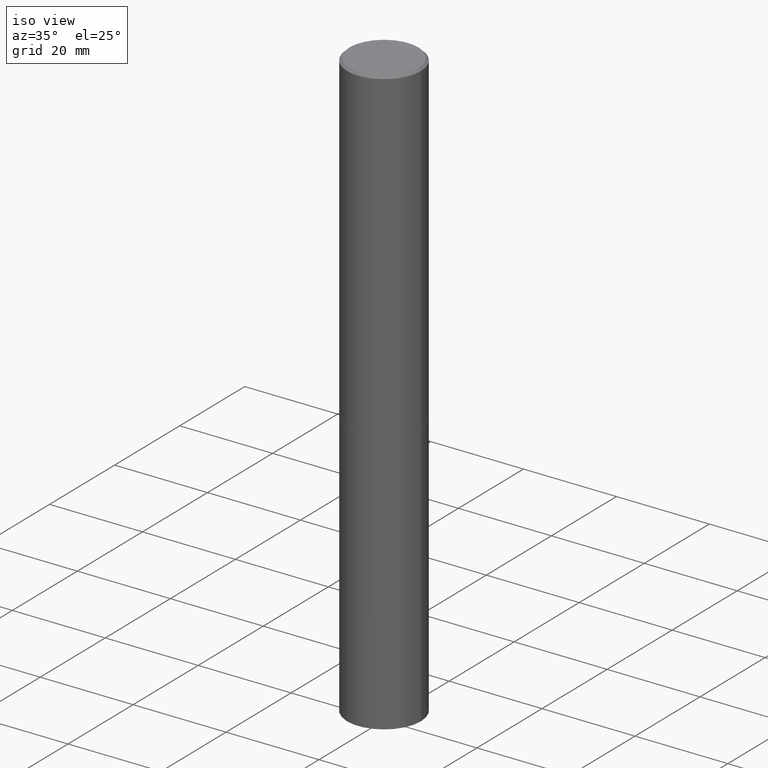
[diagram: clean part render]
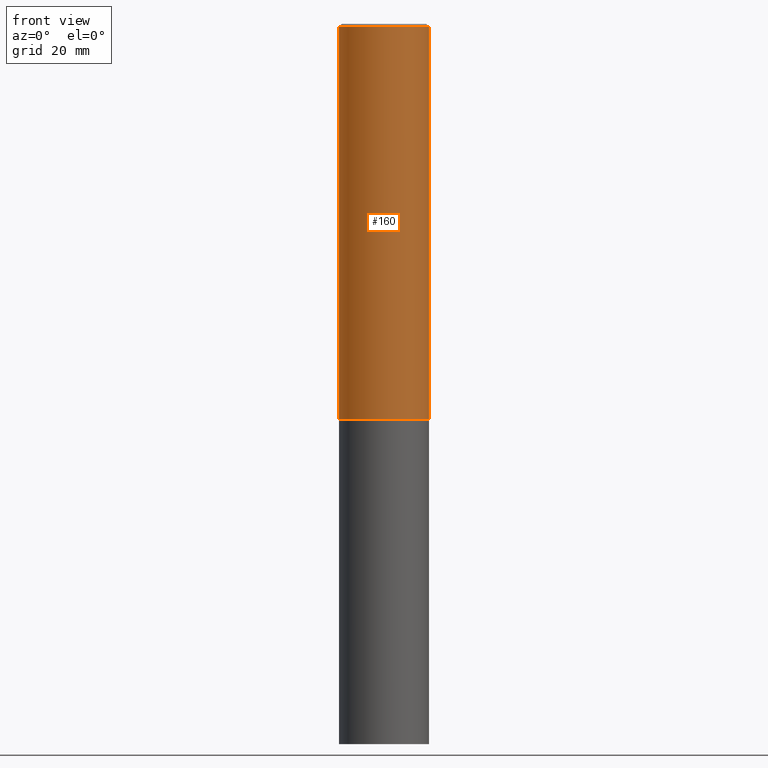
[diagram: tour spotlight — one face highlighted and labeled with its STEP entity id]
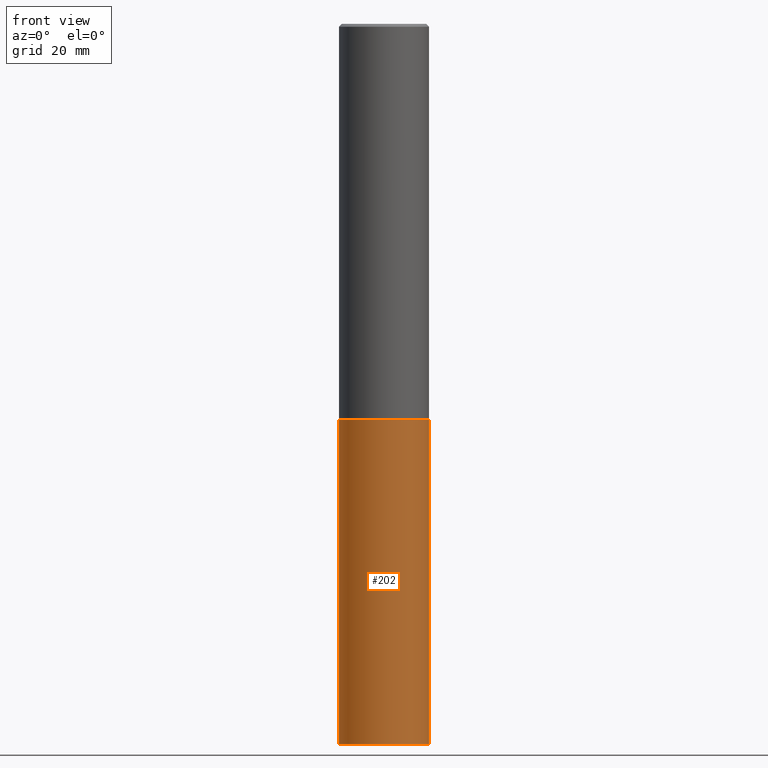
[diagram: tour spotlight — one face highlighted and labeled with its STEP entity id]
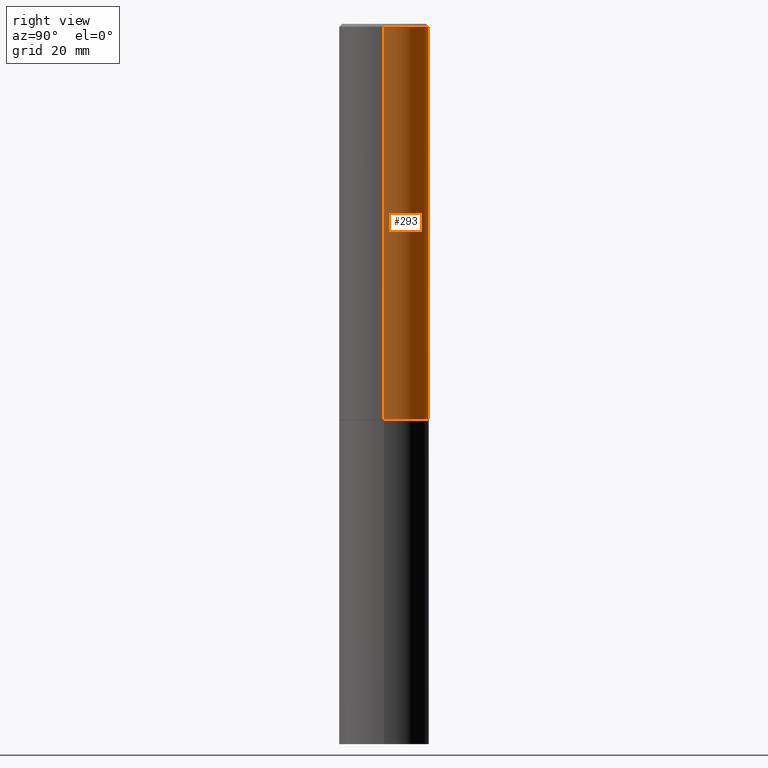
[diagram: tour spotlight — one face highlighted and labeled with its STEP entity id]
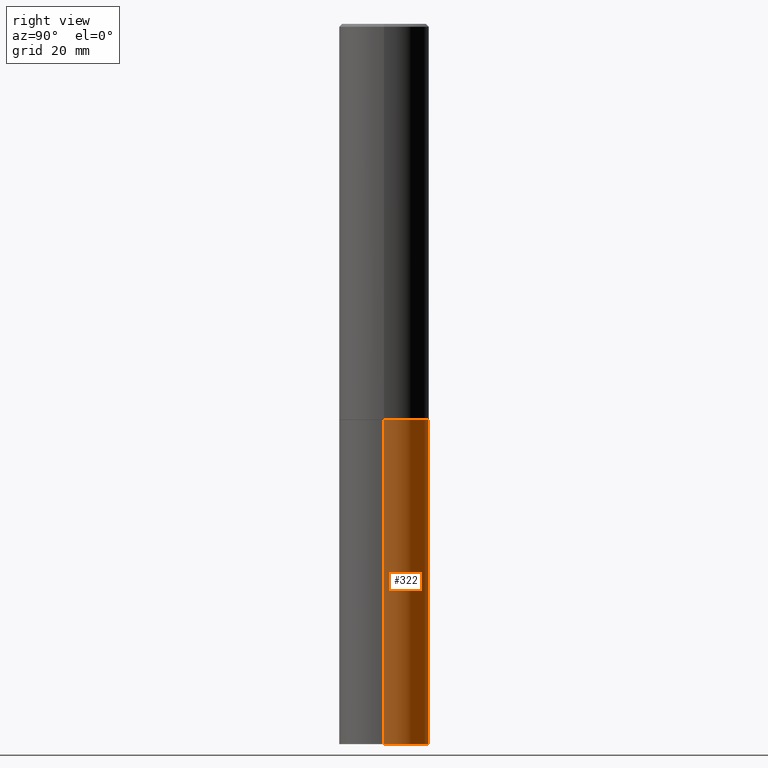
[diagram: tour spotlight — one face highlighted and labeled with its STEP entity id]
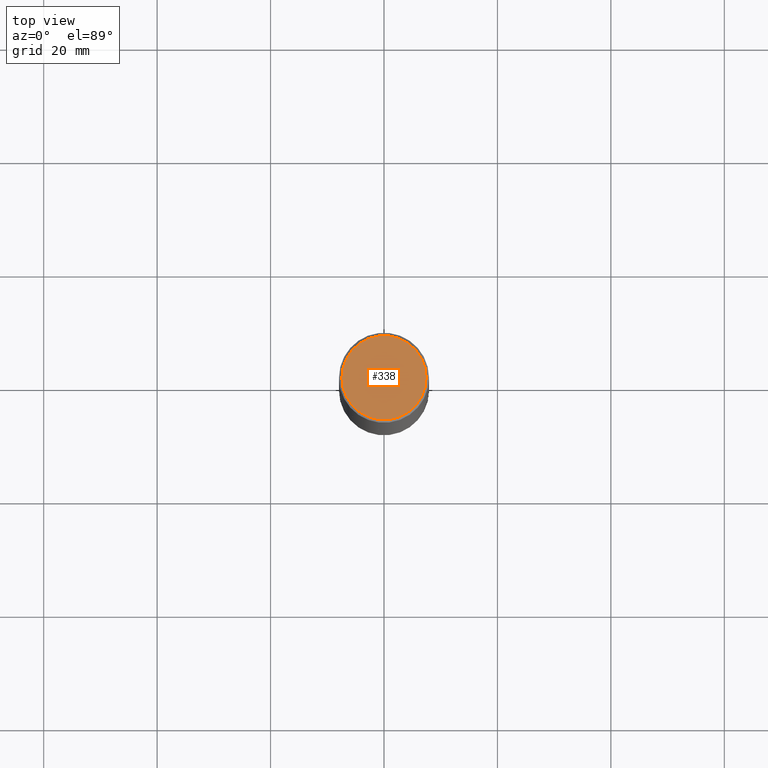
[diagram: tour spotlight — one face highlighted and labeled with its STEP entity id]
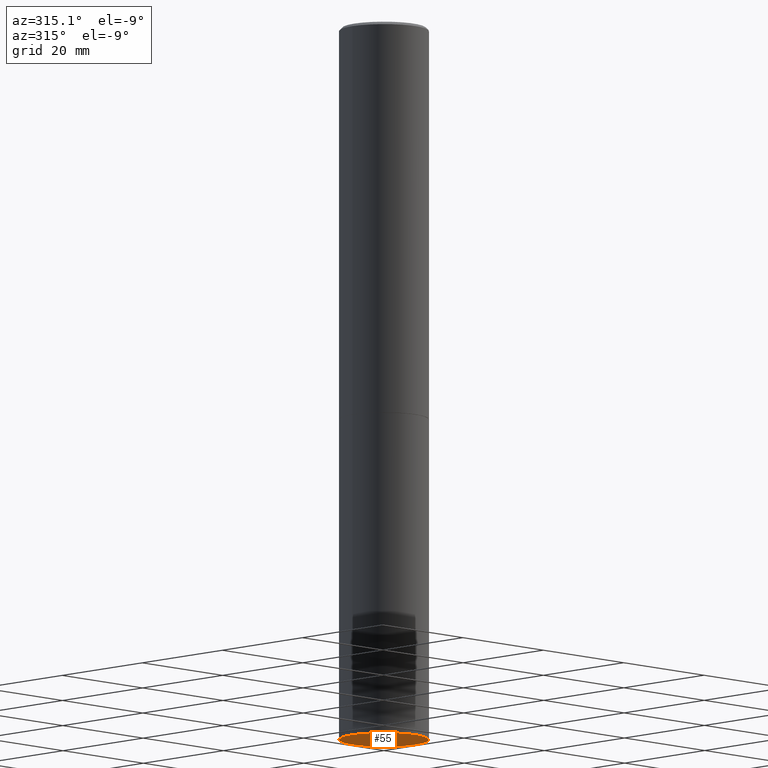
[diagram: tour spotlight — one face highlighted and labeled with its STEP entity id]
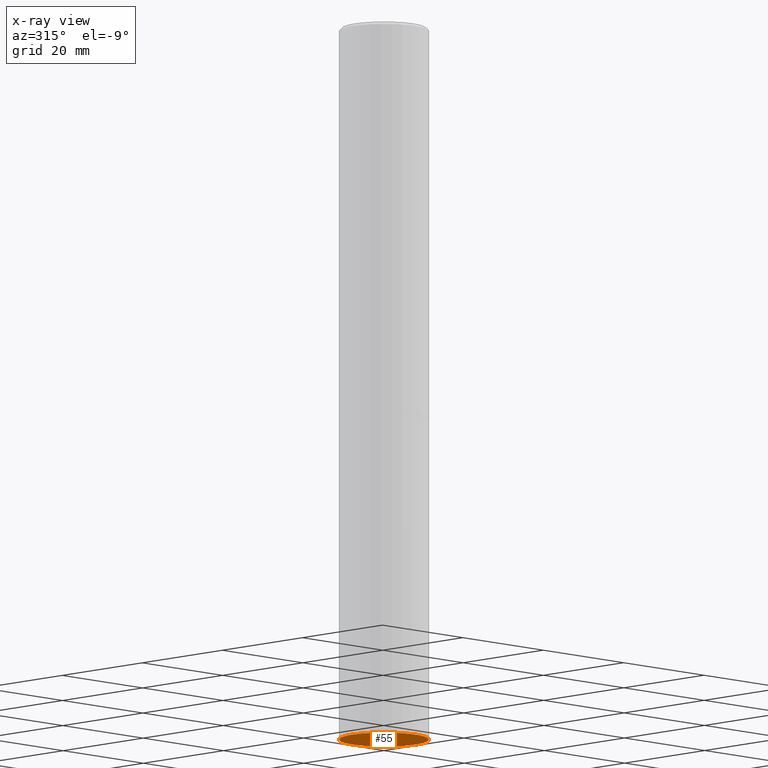
[diagram: x-ray of the same camera — body ghosted, this tour face saturated]
A machine part: a face-by-face anatomy tour. The part has 12 B-rep faces; the first image is the clean iso view, then the 6 largest visible faces are spotlighted one at a time (largest first), each with its STEP entity span.

Face 1 — front view, entity #160. In plain terms, the highlighted cylindrical surface (partial cylindrical patch) has radius 7.9375 mm, axis along (-0, 0, 1).
Definition (entity closure, byte-faithful):
#4 = ORIENTED_EDGE ( 'NONE', *, *, #316, .F. ) ;
#10 = EDGE_CURVE ( 'NONE', #297, #33, #130, .T. ) ;
#21 = AXIS2_PLACEMENT_3D ( 'NONE', #269, #180, #266 ) ;
#24 = VECTOR ( 'NONE', #278, 39.37007874015748143 ) ;
#33 = VERTEX_POINT ( 'NONE', #216 ) ;
#44 = CARTESIAN_POINT ( 'NONE',  ( -0.3125000000000000000, -2.613509864378019233E-15, -2.749000000000000110 ) ) ;
#70 = DIRECTION ( 'NONE',  ( 1.000000000000000000, -6.982962677686269077E-15, 0.000000000000000000 ) ) ;
#91 = EDGE_CURVE ( 'NONE', #201, #297, #324, .T. ) ;
#119 = DIRECTION ( 'NONE',  ( -2.445468806185136877E-29, 3.491481338843145188E-15, 1.000000000000000000 ) ) ;
#130 = LINE ( 'NONE', #337, #24 ) ;
#131 = ORIENTED_EDGE ( 'NONE', *, *, #10, .T. ) ;
#132 = CARTESIAN_POINT ( 'NONE',  ( 0.000000000000000000, 0.000000000000000000, 0.000000000000000000 ) ) ;
#134 = VECTOR ( 'NONE', #119, 39.37007874015748143 ) ;
#141 = ORIENTED_EDGE ( 'NONE', *, *, #248, .F. ) ;
#160 = ADVANCED_FACE ( 'NONE', ( #188 ), #249, .T. ) ;
#164 = AXIS2_PLACEMENT_3D ( 'NONE', #309, #222, #70 ) ;
#174 = VERTEX_POINT ( 'NONE', #252 ) ;
#180 = DIRECTION ( 'NONE',  ( -2.445468806185136597E-29, 3.491481338843145583E-15, 1.000000000000000000 ) ) ;
#188 = FACE_OUTER_BOUND ( 'NONE', #313, .T. ) ;
#201 = VERTEX_POINT ( 'NONE', #44 ) ;
#210 = LINE ( 'NONE', #272, #134 ) ;
#216 = CARTESIAN_POINT ( 'NONE',  ( 0.3124999999999996114, -2.213735251080464150E-15, -0.02000000000000006981 ) ) ;
#222 = DIRECTION ( 'NONE',  ( -2.445468806185136597E-29, 3.491481338843145583E-15, 1.000000000000000000 ) ) ;
#248 = EDGE_CURVE ( 'NONE', #201, #174, #210, .T. ) ;
#249 = CYLINDRICAL_SURFACE ( 'NONE', #306, 0.3124999999999998335 ) ;
#252 = CARTESIAN_POINT ( 'NONE',  ( -0.3124999999999996114, 2.112346210000092288E-15, -0.02000000000000006981 ) ) ;
#266 = DIRECTION ( 'NONE',  ( 1.000000000000000000, -6.982962677686266711E-15, 0.000000000000000000 ) ) ;
#268 = CIRCLE ( 'NONE', #21, 0.3124999999999996114 ) ;
#269 = CARTESIAN_POINT ( 'NONE',  ( 4.890937612370289799E-31, -6.982962677686315028E-17, -0.02000000000000006981 ) ) ;
#272 = CARTESIAN_POINT ( 'NONE',  ( -0.3124999999999998335, 2.220446049250311898E-15, -1.537167215704657111E-29 ) ) ;
#277 = DIRECTION ( 'NONE',  ( -2.445468806185136597E-29, 3.491481338843145583E-15, 1.000000000000000000 ) ) ;
#278 = DIRECTION ( 'NONE',  ( -2.445468806185136877E-29, 3.491481338843145188E-15, 1.000000000000000000 ) ) ;
#289 = ORIENTED_EDGE ( 'NONE', *, *, #91, .T. ) ;
#291 = CARTESIAN_POINT ( 'NONE',  ( 0.3125000000000000000, -1.178025803725676678E-14, -2.749000000000000110 ) ) ;
#297 = VERTEX_POINT ( 'NONE', #291 ) ;
#306 = AXIS2_PLACEMENT_3D ( 'NONE', #132, #277, #360 ) ;
#309 = CARTESIAN_POINT ( 'NONE',  ( 6.722593748202941159E-29, -9.598082200479808430E-15, -2.749000000000000110 ) ) ;
#313 = EDGE_LOOP ( 'NONE', ( #141, #289, #131, #4 ) ) ;
#316 = EDGE_CURVE ( 'NONE', #174, #33, #268, .T. ) ;
#324 = CIRCLE ( 'NONE', #164, 0.3125000000000000000 ) ;
#337 = CARTESIAN_POINT ( 'NONE',  ( 0.3124999999999998335, -2.182175836776956769E-15, 1.523805242436228954E-29 ) ) ;
#360 = DIRECTION ( 'NONE',  ( 1.000000000000000000, -6.982962677686265133E-15, 4.876176775795935232E-29 ) ) ;

Face 2 — front view, entity #202. In plain terms, the highlighted cylindrical surface (partial cylindrical patch) has radius 7.9375 mm, axis along (-0, 0, 1).
Definition (entity closure, byte-faithful):
#1 = VERTEX_POINT ( 'NONE', #300 ) ;
#5 = VECTOR ( 'NONE', #177, 39.37007874015748143 ) ;
#6 = CARTESIAN_POINT ( 'NONE',  ( -0.3125000000000000000, -1.130904413876687600E-14, -2.750000000000000000 ) ) ;
#17 = DIRECTION ( 'NONE',  ( 1.000000000000000000, -6.982962677686269077E-15, 0.000000000000000000 ) ) ;
#34 = DIRECTION ( 'NONE',  ( -2.445468806185136597E-29, 3.491481338843145583E-15, 1.000000000000000000 ) ) ;
#77 = ORIENTED_EDGE ( 'NONE', *, *, #110, .F. ) ;
#80 = AXIS2_PLACEMENT_3D ( 'NONE', #246, #104, #303 ) ;
#82 = VERTEX_POINT ( 'NONE', #6 ) ;
#104 = DIRECTION ( 'NONE',  ( -2.445468806185136597E-29, 3.491481338843145583E-15, 1.000000000000000000 ) ) ;
#107 = CIRCLE ( 'NONE', #137, 0.3125000000000000000 ) ;
#110 = EDGE_CURVE ( 'NONE', #82, #317, #120, .T. ) ;
#116 = ORIENTED_EDGE ( 'NONE', *, *, #241, .T. ) ;
#117 = CARTESIAN_POINT ( 'NONE',  ( 1.222734403092568523E-28, -1.745740669421572989E-14, -5.000000000000000000 ) ) ;
#120 = CIRCLE ( 'NONE', #80, 0.3125000000000000000 ) ;
#122 = CARTESIAN_POINT ( 'NONE',  ( 0.3125000000000000000, -2.182175836776958347E-15, 1.523805242436230075E-29 ) ) ;
#137 = AXIS2_PLACEMENT_3D ( 'NONE', #117, #34, #17 ) ;
#147 = LINE ( 'NONE', #212, #282 ) ;
#162 = FACE_OUTER_BOUND ( 'NONE', #163, .T. ) ;
#163 = EDGE_LOOP ( 'NONE', ( #194, #343, #116, #77 ) ) ;
#177 = DIRECTION ( 'NONE',  ( -2.445468806185136877E-29, 3.491481338843145188E-15, 1.000000000000000000 ) ) ;
#194 = ORIENTED_EDGE ( 'NONE', *, *, #288, .F. ) ;
#202 = ADVANCED_FACE ( 'NONE', ( #162 ), #244, .T. ) ;
#212 = CARTESIAN_POINT ( 'NONE',  ( -0.3125000000000000000, 2.220446049250313081E-15, -1.537167215704658232E-29 ) ) ;
#218 = DIRECTION ( 'NONE',  ( 1.000000000000000000, -6.982962677686266711E-15, 4.876176775795936353E-29 ) ) ;
#237 = DIRECTION ( 'NONE',  ( -2.445468806185136877E-29, 3.491481338843145188E-15, 1.000000000000000000 ) ) ;
#241 = EDGE_CURVE ( 'NONE', #1, #317, #299, .T. ) ;
#244 = CYLINDRICAL_SURFACE ( 'NONE', #274, 0.3125000000000000000 ) ;
#246 = CARTESIAN_POINT ( 'NONE',  ( 6.725039217009124520E-29, -9.601573681818649859E-15, -2.750000000000000000 ) ) ;
#257 = VERTEX_POINT ( 'NONE', #290 ) ;
#271 = EDGE_CURVE ( 'NONE', #257, #1, #107, .T. ) ;
#274 = AXIS2_PLACEMENT_3D ( 'NONE', #356, #330, #218 ) ;
#282 = VECTOR ( 'NONE', #237, 39.37007874015748143 ) ;
#288 = EDGE_CURVE ( 'NONE', #257, #82, #147, .T. ) ;
#290 = CARTESIAN_POINT ( 'NONE',  ( -0.3125000000000000000, -1.130904413876687600E-14, -5.000000000000000000 ) ) ;
#295 = CARTESIAN_POINT ( 'NONE',  ( 0.3125000000000000000, -1.178374951859560978E-14, -2.750000000000000000 ) ) ;
#299 = LINE ( 'NONE', #122, #5 ) ;
#300 = CARTESIAN_POINT ( 'NONE',  ( 0.3125000000000000000, -1.963958253099268981E-14, -5.000000000000000000 ) ) ;
#303 = DIRECTION ( 'NONE',  ( 1.000000000000000000, -6.982962677686269077E-15, 0.000000000000000000 ) ) ;
#317 = VERTEX_POINT ( 'NONE', #295 ) ;
#330 = DIRECTION ( 'NONE',  ( -2.445468806185136597E-29, 3.491481338843145583E-15, 1.000000000000000000 ) ) ;
#343 = ORIENTED_EDGE ( 'NONE', *, *, #271, .T. ) ;
#356 = CARTESIAN_POINT ( 'NONE',  ( 0.000000000000000000, 0.000000000000000000, 0.000000000000000000 ) ) ;

Face 3 — right view, entity #293. In plain terms, the highlighted cylindrical surface (partial cylindrical patch) has radius 7.9375 mm, axis along (-0, 0, 1).
Definition (entity closure, byte-faithful):
#10 = EDGE_CURVE ( 'NONE', #297, #33, #130, .T. ) ;
#22 = CARTESIAN_POINT ( 'NONE',  ( 6.722593748202941159E-29, -9.598082200479808430E-15, -2.749000000000000110 ) ) ;
#24 = VECTOR ( 'NONE', #278, 39.37007874015748143 ) ;
#28 = AXIS2_PLACEMENT_3D ( 'NONE', #22, #361, #105 ) ;
#31 = EDGE_CURVE ( 'NONE', #297, #201, #311, .T. ) ;
#33 = VERTEX_POINT ( 'NONE', #216 ) ;
#35 = DIRECTION ( 'NONE',  ( 1.000000000000000000, -6.982962677686265133E-15, 4.876176775795935232E-29 ) ) ;
#41 = EDGE_CURVE ( 'NONE', #33, #174, #206, .T. ) ;
#44 = CARTESIAN_POINT ( 'NONE',  ( -0.3125000000000000000, -2.613509864378019233E-15, -2.749000000000000110 ) ) ;
#50 = AXIS2_PLACEMENT_3D ( 'NONE', #57, #232, #35 ) ;
#51 = ORIENTED_EDGE ( 'NONE', *, *, #31, .T. ) ;
#57 = CARTESIAN_POINT ( 'NONE',  ( 0.000000000000000000, 0.000000000000000000, 0.000000000000000000 ) ) ;
#61 = AXIS2_PLACEMENT_3D ( 'NONE', #283, #166, #69 ) ;
#69 = DIRECTION ( 'NONE',  ( 1.000000000000000000, -6.982962677686266711E-15, 0.000000000000000000 ) ) ;
#105 = DIRECTION ( 'NONE',  ( 1.000000000000000000, -6.982962677686269077E-15, 0.000000000000000000 ) ) ;
#119 = DIRECTION ( 'NONE',  ( -2.445468806185136877E-29, 3.491481338843145188E-15, 1.000000000000000000 ) ) ;
#130 = LINE ( 'NONE', #337, #24 ) ;
#134 = VECTOR ( 'NONE', #119, 39.37007874015748143 ) ;
#139 = EDGE_LOOP ( 'NONE', ( #51, #228, #231, #168 ) ) ;
#166 = DIRECTION ( 'NONE',  ( -2.445468806185136597E-29, 3.491481338843145583E-15, 1.000000000000000000 ) ) ;
#168 = ORIENTED_EDGE ( 'NONE', *, *, #10, .F. ) ;
#174 = VERTEX_POINT ( 'NONE', #252 ) ;
#201 = VERTEX_POINT ( 'NONE', #44 ) ;
#206 = CIRCLE ( 'NONE', #61, 0.3124999999999996114 ) ;
#210 = LINE ( 'NONE', #272, #134 ) ;
#216 = CARTESIAN_POINT ( 'NONE',  ( 0.3124999999999996114, -2.213735251080464150E-15, -0.02000000000000006981 ) ) ;
#228 = ORIENTED_EDGE ( 'NONE', *, *, #248, .T. ) ;
#231 = ORIENTED_EDGE ( 'NONE', *, *, #41, .F. ) ;
#232 = DIRECTION ( 'NONE',  ( -2.445468806185136597E-29, 3.491481338843145583E-15, 1.000000000000000000 ) ) ;
#248 = EDGE_CURVE ( 'NONE', #201, #174, #210, .T. ) ;
#252 = CARTESIAN_POINT ( 'NONE',  ( -0.3124999999999996114, 2.112346210000092288E-15, -0.02000000000000006981 ) ) ;
#272 = CARTESIAN_POINT ( 'NONE',  ( -0.3124999999999998335, 2.220446049250311898E-15, -1.537167215704657111E-29 ) ) ;
#278 = DIRECTION ( 'NONE',  ( -2.445468806185136877E-29, 3.491481338843145188E-15, 1.000000000000000000 ) ) ;
#283 = CARTESIAN_POINT ( 'NONE',  ( 4.890937612370289799E-31, -6.982962677686315028E-17, -0.02000000000000006981 ) ) ;
#291 = CARTESIAN_POINT ( 'NONE',  ( 0.3125000000000000000, -1.178025803725676678E-14, -2.749000000000000110 ) ) ;
#293 = ADVANCED_FACE ( 'NONE', ( #352 ), #298, .T. ) ;
#297 = VERTEX_POINT ( 'NONE', #291 ) ;
#298 = CYLINDRICAL_SURFACE ( 'NONE', #50, 0.3124999999999998335 ) ;
#311 = CIRCLE ( 'NONE', #28, 0.3125000000000000000 ) ;
#337 = CARTESIAN_POINT ( 'NONE',  ( 0.3124999999999998335, -2.182175836776956769E-15, 1.523805242436228954E-29 ) ) ;
#352 = FACE_OUTER_BOUND ( 'NONE', #139, .T. ) ;
#361 = DIRECTION ( 'NONE',  ( -2.445468806185136597E-29, 3.491481338843145583E-15, 1.000000000000000000 ) ) ;

Face 4 — right view, entity #322. In plain terms, the highlighted cylindrical surface (partial cylindrical patch) has radius 7.9375 mm, axis along (-0, 0, 1).
Definition (entity closure, byte-faithful):
#1 = VERTEX_POINT ( 'NONE', #300 ) ;
#5 = VECTOR ( 'NONE', #177, 39.37007874015748143 ) ;
#6 = CARTESIAN_POINT ( 'NONE',  ( -0.3125000000000000000, -1.130904413876687600E-14, -2.750000000000000000 ) ) ;
#11 = CARTESIAN_POINT ( 'NONE',  ( 0.000000000000000000, 0.000000000000000000, 0.000000000000000000 ) ) ;
#19 = DIRECTION ( 'NONE',  ( -2.445468806185136597E-29, 3.491481338843145583E-15, 1.000000000000000000 ) ) ;
#40 = DIRECTION ( 'NONE',  ( -2.445468806185136597E-29, 3.491481338843145583E-15, 1.000000000000000000 ) ) ;
#47 = EDGE_CURVE ( 'NONE', #1, #257, #362, .T. ) ;
#64 = CYLINDRICAL_SURFACE ( 'NONE', #294, 0.3125000000000000000 ) ;
#68 = DIRECTION ( 'NONE',  ( 1.000000000000000000, -6.982962677686269077E-15, 0.000000000000000000 ) ) ;
#75 = CIRCLE ( 'NONE', #198, 0.3125000000000000000 ) ;
#79 = ORIENTED_EDGE ( 'NONE', *, *, #183, .F. ) ;
#82 = VERTEX_POINT ( 'NONE', #6 ) ;
#122 = CARTESIAN_POINT ( 'NONE',  ( 0.3125000000000000000, -2.182175836776958347E-15, 1.523805242436230075E-29 ) ) ;
#147 = LINE ( 'NONE', #212, #282 ) ;
#150 = FACE_OUTER_BOUND ( 'NONE', #171, .T. ) ;
#171 = EDGE_LOOP ( 'NONE', ( #226, #315, #79, #258 ) ) ;
#177 = DIRECTION ( 'NONE',  ( -2.445468806185136877E-29, 3.491481338843145188E-15, 1.000000000000000000 ) ) ;
#182 = DIRECTION ( 'NONE',  ( 1.000000000000000000, -6.982962677686266711E-15, 4.876176775795936353E-29 ) ) ;
#183 = EDGE_CURVE ( 'NONE', #317, #82, #75, .T. ) ;
#198 = AXIS2_PLACEMENT_3D ( 'NONE', #358, #19, #68 ) ;
#212 = CARTESIAN_POINT ( 'NONE',  ( -0.3125000000000000000, 2.220446049250313081E-15, -1.537167215704658232E-29 ) ) ;
#226 = ORIENTED_EDGE ( 'NONE', *, *, #47, .T. ) ;
#237 = DIRECTION ( 'NONE',  ( -2.445468806185136877E-29, 3.491481338843145188E-15, 1.000000000000000000 ) ) ;
#241 = EDGE_CURVE ( 'NONE', #1, #317, #299, .T. ) ;
#247 = CARTESIAN_POINT ( 'NONE',  ( 1.222734403092568523E-28, -1.745740669421572989E-14, -5.000000000000000000 ) ) ;
#250 = DIRECTION ( 'NONE',  ( 1.000000000000000000, -6.982962677686269077E-15, 0.000000000000000000 ) ) ;
#257 = VERTEX_POINT ( 'NONE', #290 ) ;
#258 = ORIENTED_EDGE ( 'NONE', *, *, #241, .F. ) ;
#282 = VECTOR ( 'NONE', #237, 39.37007874015748143 ) ;
#288 = EDGE_CURVE ( 'NONE', #257, #82, #147, .T. ) ;
#290 = CARTESIAN_POINT ( 'NONE',  ( -0.3125000000000000000, -1.130904413876687600E-14, -5.000000000000000000 ) ) ;
#294 = AXIS2_PLACEMENT_3D ( 'NONE', #11, #40, #182 ) ;
#295 = CARTESIAN_POINT ( 'NONE',  ( 0.3125000000000000000, -1.178374951859560978E-14, -2.750000000000000000 ) ) ;
#299 = LINE ( 'NONE', #122, #5 ) ;
#300 = CARTESIAN_POINT ( 'NONE',  ( 0.3125000000000000000, -1.963958253099268981E-14, -5.000000000000000000 ) ) ;
#315 = ORIENTED_EDGE ( 'NONE', *, *, #288, .T. ) ;
#317 = VERTEX_POINT ( 'NONE', #295 ) ;
#318 = AXIS2_PLACEMENT_3D ( 'NONE', #247, #359, #250 ) ;
#322 = ADVANCED_FACE ( 'NONE', ( #150 ), #64, .T. ) ;
#358 = CARTESIAN_POINT ( 'NONE',  ( 6.725039217009124520E-29, -9.601573681818649859E-15, -2.750000000000000000 ) ) ;
#359 = DIRECTION ( 'NONE',  ( -2.445468806185136597E-29, 3.491481338843145583E-15, 1.000000000000000000 ) ) ;
#362 = CIRCLE ( 'NONE', #318, 0.3125000000000000000 ) ;

Face 5 — top view, entity #338. In plain terms, the highlighted planar face has unit normal (0, -0, -1).
Definition (entity closure, byte-faithful):
#7 = AXIS2_PLACEMENT_3D ( 'NONE', #14, #66, #185 ) ;
#14 = CARTESIAN_POINT ( 'NONE',  ( -1.043851414335219820E-46, 1.490343170380447200E-32, 4.268512490100411279E-18 ) ) ;
#20 = AXIS2_PLACEMENT_3D ( 'NONE', #336, #191, #157 ) ;
#37 = CARTESIAN_POINT ( 'NONE',  ( 2.042516583223229779E-15, 0.2924999999999995937, -1.019124035366568423E-15 ) ) ;
#60 = CARTESIAN_POINT ( 'NONE',  ( -0.2924999999999995937, 2.077431396611661033E-15, 4.268512490086005323E-18 ) ) ;
#66 = DIRECTION ( 'NONE',  ( -2.445468806185136597E-29, 3.491481338843145583E-15, 1.000000000000000000 ) ) ;
#111 = VERTEX_POINT ( 'NONE', #158 ) ;
#124 = FACE_OUTER_BOUND ( 'NONE', #205, .T. ) ;
#153 = PLANE ( 'NONE',  #275 ) ;
#157 = DIRECTION ( 'NONE',  ( 1.000000000000000000, -6.982962677686266711E-15, 4.876067333457696203E-29 ) ) ;
#158 = CARTESIAN_POINT ( 'NONE',  ( 0.2924999999999995937, -2.110215457714316776E-15, 4.268512490114932791E-18 ) ) ;
#175 = CIRCLE ( 'NONE', #20, 0.2924999999999995937 ) ;
#185 = DIRECTION ( 'NONE',  ( 1.000000000000000000, -6.982962677686266711E-15, 4.876067333457696203E-29 ) ) ;
#191 = DIRECTION ( 'NONE',  ( -2.445468806185136597E-29, 3.491481338843145583E-15, 1.000000000000000000 ) ) ;
#193 = EDGE_CURVE ( 'NONE', #111, #287, #175, .T. ) ;
#205 = EDGE_LOOP ( 'NONE', ( #348, #264 ) ) ;
#240 = DIRECTION ( 'NONE',  ( -1.000000000000000000, 6.982962677686265922E-15, -4.876176775795935793E-29 ) ) ;
#264 = ORIENTED_EDGE ( 'NONE', *, *, #193, .T. ) ;
#275 = AXIS2_PLACEMENT_3D ( 'NONE', #37, #328, #240 ) ;
#287 = VERTEX_POINT ( 'NONE', #60 ) ;
#328 = DIRECTION ( 'NONE',  ( 2.438088387897960049E-29, -3.491481338843145188E-15, -1.000000000000000000 ) ) ;
#336 = CARTESIAN_POINT ( 'NONE',  ( -1.043851414335219820E-46, 1.490343170380447200E-32, 4.268512490100411279E-18 ) ) ;
#338 = ADVANCED_FACE ( 'NONE', ( #124 ), #153, .F. ) ;
#348 = ORIENTED_EDGE ( 'NONE', *, *, #365, .T. ) ;
#350 = CIRCLE ( 'NONE', #7, 0.2924999999999995937 ) ;
#365 = EDGE_CURVE ( 'NONE', #287, #111, #350, .T. ) ;

Face 6 — auxiliary view, entity #55. An x-ray twin of the same camera follows (body ghosted, this face saturated) — the face is partly hidden behind the body. In plain terms, the highlighted planar face has unit normal (0, -0, -1).
Definition (entity closure, byte-faithful):
#1 = VERTEX_POINT ( 'NONE', #300 ) ;
#17 = DIRECTION ( 'NONE',  ( 1.000000000000000000, -6.982962677686269077E-15, 0.000000000000000000 ) ) ;
#34 = DIRECTION ( 'NONE',  ( -2.445468806185136597E-29, 3.491481338843145583E-15, 1.000000000000000000 ) ) ;
#47 = EDGE_CURVE ( 'NONE', #1, #257, #362, .T. ) ;
#55 = ADVANCED_FACE ( 'NONE', ( #133 ), #254, .T. ) ;
#101 = DIRECTION ( 'NONE',  ( 2.438088387897960049E-29, -3.491481338843145188E-15, -1.000000000000000000 ) ) ;
#106 = CARTESIAN_POINT ( 'NONE',  ( 2.182175836777080620E-15, 0.3124999999999825140, -5.000000000000000888 ) ) ;
#107 = CIRCLE ( 'NONE', #137, 0.3125000000000000000 ) ;
#117 = CARTESIAN_POINT ( 'NONE',  ( 1.222734403092568523E-28, -1.745740669421572989E-14, -5.000000000000000000 ) ) ;
#133 = FACE_OUTER_BOUND ( 'NONE', #186, .T. ) ;
#137 = AXIS2_PLACEMENT_3D ( 'NONE', #117, #34, #17 ) ;
#172 = ORIENTED_EDGE ( 'NONE', *, *, #47, .F. ) ;
#186 = EDGE_LOOP ( 'NONE', ( #172, #261 ) ) ;
#192 = AXIS2_PLACEMENT_3D ( 'NONE', #106, #101, #223 ) ;
#223 = DIRECTION ( 'NONE',  ( -1.000000000000000000, 6.982962677686265922E-15, -4.876176775795935793E-29 ) ) ;
#247 = CARTESIAN_POINT ( 'NONE',  ( 1.222734403092568523E-28, -1.745740669421572989E-14, -5.000000000000000000 ) ) ;
#250 = DIRECTION ( 'NONE',  ( 1.000000000000000000, -6.982962677686269077E-15, 0.000000000000000000 ) ) ;
#254 = PLANE ( 'NONE',  #192 ) ;
#257 = VERTEX_POINT ( 'NONE', #290 ) ;
#261 = ORIENTED_EDGE ( 'NONE', *, *, #271, .F. ) ;
#271 = EDGE_CURVE ( 'NONE', #257, #1, #107, .T. ) ;
#290 = CARTESIAN_POINT ( 'NONE',  ( -0.3125000000000000000, -1.130904413876687600E-14, -5.000000000000000000 ) ) ;
#300 = CARTESIAN_POINT ( 'NONE',  ( 0.3125000000000000000, -1.963958253099268981E-14, -5.000000000000000000 ) ) ;
#318 = AXIS2_PLACEMENT_3D ( 'NONE', #247, #359, #250 ) ;
#359 = DIRECTION ( 'NONE',  ( -2.445468806185136597E-29, 3.491481338843145583E-15, 1.000000000000000000 ) ) ;
#362 = CIRCLE ( 'NONE', #318, 0.3125000000000000000 ) ;